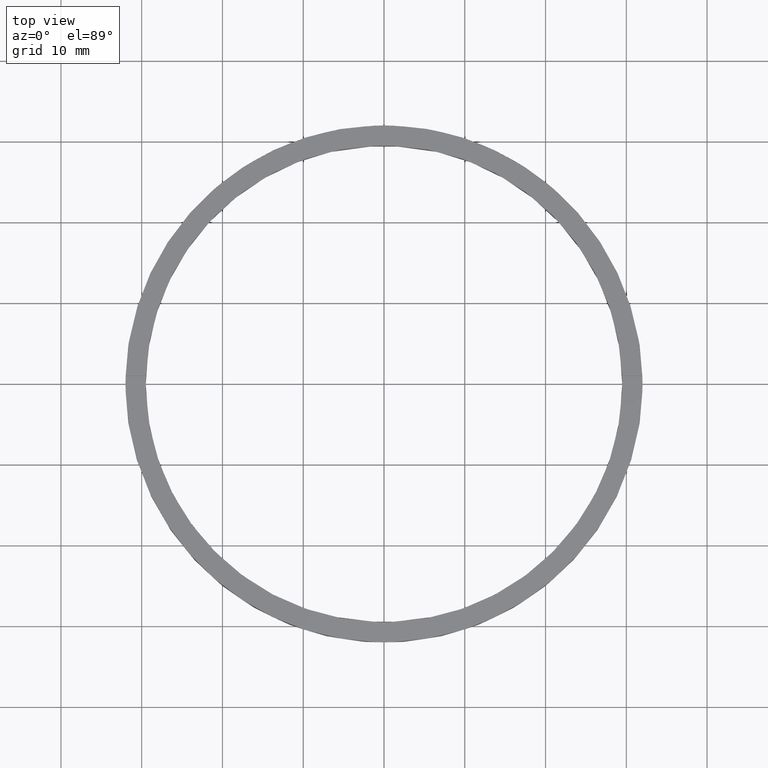
[diagram: clean part render]
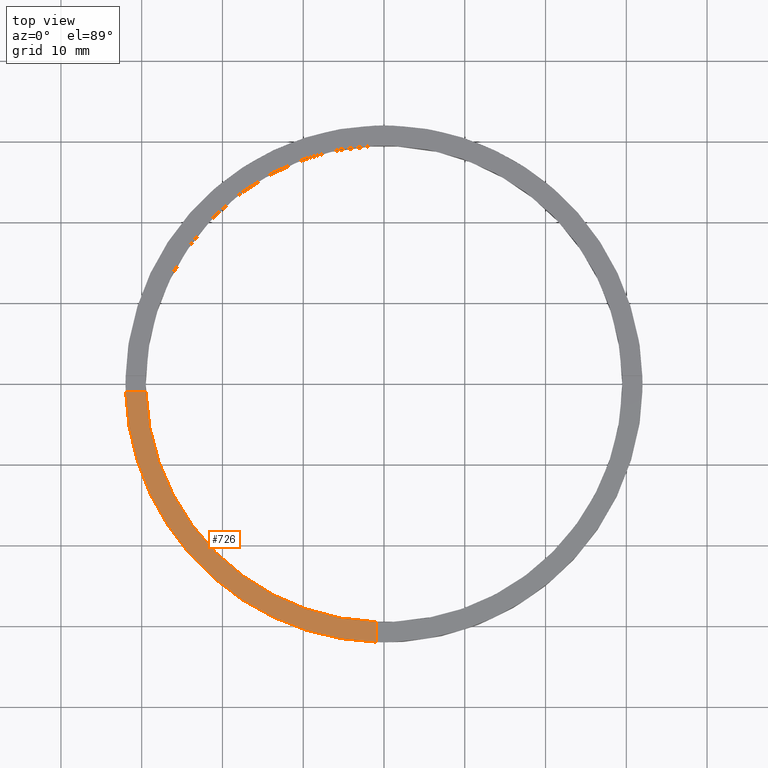
[diagram: same view with one face highlighted and labeled with its STEP entity id]
A machine part, top view. The second image highlights one B-rep face of the part: STEP entity #726.
In plain terms, the highlighted planar face has unit normal (0, 0, 1).
Its self-contained STEP definition (entity closure, byte-faithful):
#13 = EDGE_LOOP ( 'NONE', ( #425, #191, #180, #406 ) ) ;
#20 = CIRCLE ( 'NONE', #585, 32.00000000000000000 ) ;
#64 = DIRECTION ( 'NONE',  ( 1.000000000000000000, 0.000000000000000000, 0.000000000000000000 ) ) ;
#68 = DIRECTION ( 'NONE',  ( 0.000000000000000000, 0.000000000000000000, 1.000000000000000000 ) ) ;
#72 = DIRECTION ( 'NONE',  ( 1.000000000000000000, 0.000000000000000000, 0.000000000000000000 ) ) ;
#84 = EDGE_CURVE ( 'NONE', #210, #186, #141, .T. ) ;
#89 = DIRECTION ( 'NONE',  ( 0.000000000000000000, 0.000000000000000000, 1.000000000000000000 ) ) ;
#100 = CIRCLE ( 'NONE', #643, 29.50000000000000355 ) ;
#140 = VERTEX_POINT ( 'NONE', #337 ) ;
#141 = LINE ( 'NONE', #398, #151 ) ;
#151 = VECTOR ( 'NONE', #608, 1000.000000000000000 ) ;
#176 = EDGE_CURVE ( 'NONE', #186, #140, #100, .T. ) ;
#180 = ORIENTED_EDGE ( 'NONE', *, *, #84, .F. ) ;
#186 = VERTEX_POINT ( 'NONE', #771 ) ;
#191 = ORIENTED_EDGE ( 'NONE', *, *, #176, .F. ) ;
#206 = VERTEX_POINT ( 'NONE', #385 ) ;
#210 = VERTEX_POINT ( 'NONE', #326 ) ;
#301 = CARTESIAN_POINT ( 'NONE',  ( -1.000000000000162537, -22.00000000000017764, 3.000000000000000000 ) ) ;
#326 = CARTESIAN_POINT ( 'NONE',  ( -31.98437118343894880, -1.000000000000025757, 3.000000000000000000 ) ) ;
#337 = CARTESIAN_POINT ( 'NONE',  ( -1.000000000000161426, -29.48304597561113383, 3.000000000000000000 ) ) ;
#345 = DIRECTION ( 'NONE',  ( 1.000000000000000000, 0.000000000000000000, -0.000000000000000000 ) ) ;
#371 = PLANE ( 'NONE',  #457 ) ;
#379 = EDGE_CURVE ( 'NONE', #210, #206, #20, .T. ) ;
#385 = CARTESIAN_POINT ( 'NONE',  ( -1.000000000000161204, -31.98437118343894170, 3.000000000000000000 ) ) ;
#388 = DIRECTION ( 'NONE',  ( 0.000000000000000000, 0.000000000000000000, 1.000000000000000000 ) ) ;
#398 = CARTESIAN_POINT ( 'NONE',  ( -22.00000000000018119, -1.000000000000023981, 3.000000000000000000 ) ) ;
#406 = ORIENTED_EDGE ( 'NONE', *, *, #379, .T. ) ;
#425 = ORIENTED_EDGE ( 'NONE', *, *, #691, .F. ) ;
#457 = AXIS2_PLACEMENT_3D ( 'NONE', #583, #89, #345 ) ;
#515 = LINE ( 'NONE', #301, #777 ) ;
#517 = FACE_OUTER_BOUND ( 'NONE', #13, .T. ) ;
#520 = CARTESIAN_POINT ( 'NONE',  ( 0.000000000000000000, 0.000000000000000000, 3.000000000000000000 ) ) ;
#583 = CARTESIAN_POINT ( 'NONE',  ( 0.000000000000000000, 0.000000000000000000, 3.000000000000000000 ) ) ;
#585 = AXIS2_PLACEMENT_3D ( 'NONE', #520, #68, #64 ) ;
#608 = DIRECTION ( 'NONE',  ( 1.000000000000000000, 1.951563910473908228E-16, -0.000000000000000000 ) ) ;
#638 = CARTESIAN_POINT ( 'NONE',  ( 0.000000000000000000, 0.000000000000000000, 3.000000000000000000 ) ) ;
#643 = AXIS2_PLACEMENT_3D ( 'NONE', #638, #388, #72 ) ;
#691 = EDGE_CURVE ( 'NONE', #140, #206, #515, .T. ) ;
#726 = ADVANCED_FACE ( 'NONE', ( #517 ), #371, .T. ) ;
#749 = DIRECTION ( 'NONE',  ( 1.301042606982605074E-16, -1.000000000000000000, 0.000000000000000000 ) ) ;
#771 = CARTESIAN_POINT ( 'NONE',  ( -29.48304597561113738, -1.000000000000025313, 3.000000000000000000 ) ) ;
#777 = VECTOR ( 'NONE', #749, 1000.000000000000000 ) ;